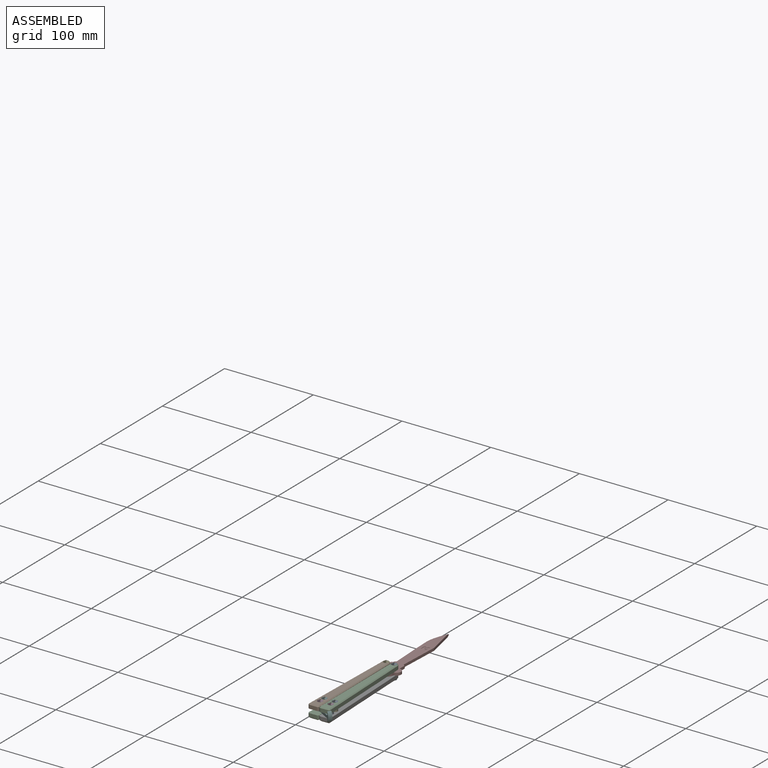
[diagram: assembled view]
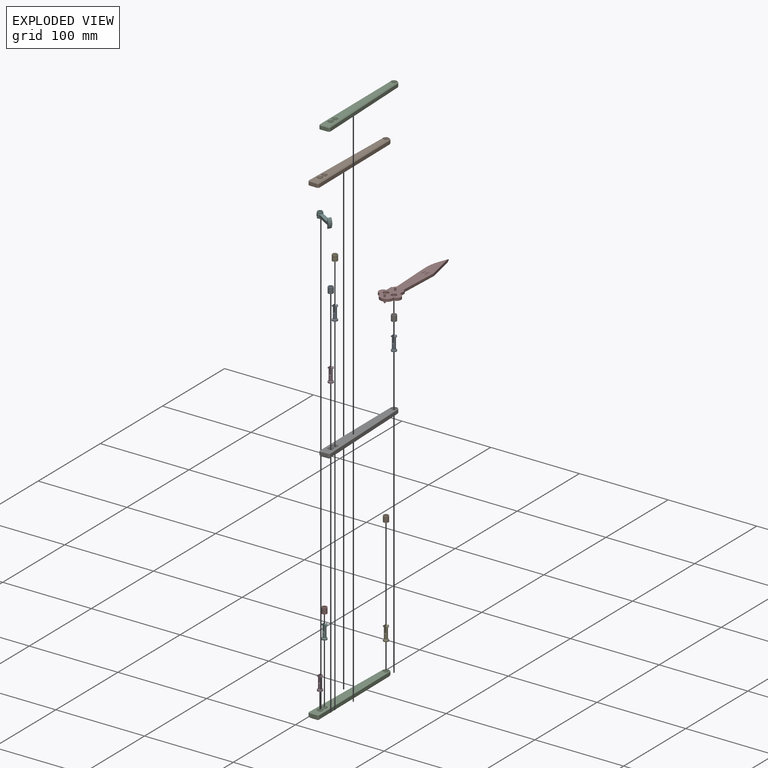
[diagram: exploded view]
GUIDED TOUR — MATED ASSEMBLY (Onshape document c22fe55abaea936f5209b5d4, AutoMate assembly c22fe55abaea936f5209b5d4_3cdbc63c3f95b4cfe2115290_4861135776a58d1719c82f19_default)

This assembly has 17 components, labeled P0..P16 below (a component is one placed occurrence of a part; the same part can appear more than once), held together by 16 mates. A mate is a constraint between two components; its type names the relative motion it leaves free:
  FASTENED — locks the two components together rigidly (no relative motion),
  REVOLUTE — leaves rotation about the listed axis free (a hinge).
Axis/direction vectors are unit vectors and 'through' points are millimeter coordinates, both in the assembly's world frame.

MATES
  1. REVOLUTE "Revolute 3": P5 <-> P2, axis (0.000, 0.000, -1.000) through (11.71, -177.00, 8.34) mm
  2. FASTENED "Fastened 5": P14 <-> P4, direction (0.000, 0.000, 1.000) through (23.59, -169.99, 8.34) mm
  3. FASTENED "Fastened 6": P2 <-> P7, direction (0.000, 0.000, 1.000) through (11.76, -170.00, 8.34) mm
  4. REVOLUTE "Revolute 2": P14 <-> P6, axis (0.000, 0.000, 1.000) through (21.54, -72.01, 8.34) mm
  5. FASTENED "Fastened 8": P12 <-> P2, direction (0.000, 0.000, 1.000) through (12.54, -72.01, 5.34) mm
  6. FASTENED "Fastened 10": P13 <-> P2, direction (0.000, 0.000, 1.000) through (11.76, -170.00, 5.34) mm
  7. FASTENED "Fastened 1": P1 <-> P15, direction (0.000, 0.000, -1.000) through (12.54, -72.01, 11.59) mm
  8. FASTENED "Fastened 11": P3 <-> P2, direction (0.000, 0.000, 1.000) through (11.71, -177.00, 5.34) mm
  9. FASTENED "Fastened 3": P7 <-> P9, direction (0.000, 0.000, 1.000) through (11.76, -170.00, 14.84) mm
  10. FASTENED "Fastened 7": P16 <-> P14, direction (0.000, 0.000, 1.000) through (21.54, -72.01, 5.34) mm
  11. FASTENED "Fastened 12": P11 <-> P14, direction (0.000, 0.000, 1.000) through (23.74, -176.98, 5.34) mm
  12. FASTENED "Fastened 13": P0 <-> P14, direction (0.000, 0.000, -1.000) through (23.74, -176.98, 8.34) mm
  13. FASTENED "Fastened 4": P4 <-> P10, direction (0.000, 0.000, 1.000) through (23.59, -169.99, 14.84) mm
  14. FASTENED "Fastened 9": P8 <-> P14, direction (0.000, 0.000, 1.000) through (23.59, -169.99, 5.34) mm
  15. FASTENED "Fastened 2": P6 <-> P15, direction (0.000, 0.000, -1.000) through (21.54, -72.01, 11.59) mm
  16. REVOLUTE "Revolute 1": P2 <-> P1, axis (0.000, 0.000, 1.000) through (12.54, -72.01, 8.34) mm

ASSEMBLY ORDER
  1. P2 — the base component [order heuristic]
  2. P1 [order heuristic]
  3. P3 [order heuristic]
  4. P5 [order heuristic]
  5. P7 [order heuristic]
  6. P12 [order heuristic]
  7. P13 [order heuristic]
  8. P9 [order heuristic]
  9. P15 [order heuristic]
  10. P6 [order heuristic]
  11. P14 [order heuristic]
  12. P0 [order heuristic]
  13. P4 [order heuristic]
  14. P8 [order heuristic]
  15. P11 [order heuristic]
  16. P16 [order heuristic]
  17. P10 [order heuristic]
Order-tag legend:
  [order heuristic] — this assembly is geometrically interlocked (no collision-free removal order exists), so components are listed in mate-graph order; insertion feasibility is not verified.

Of the 17 components, 11 carry the full construction recipe — the FeatureScript program that regenerates the part's solid from scratch; the rest are supplied as boundary geometry only.
Because this assembly has more than 12 components, the tour below covers the 12 most significant ones individually (every recipe-attached component first, then the largest by part volume), in assembly order; the remaining 5 are summarized together in a grouped section at the end.
Each toured component is shown spotlighted twice — in the assembled view, then in the exploded view, where a leader line traces a displaced component back to its assembled socket (saturated green if recipe-attached, orange if geometry-only; every other component desaturated gray) — followed by its recipe or geometry summary and the mates that hold it.
NOTE — this tour is split across 2 documents so each fits a 32k-token context. This is document 1: the component sections continue in the remaining 1 document, each repeating the header above.
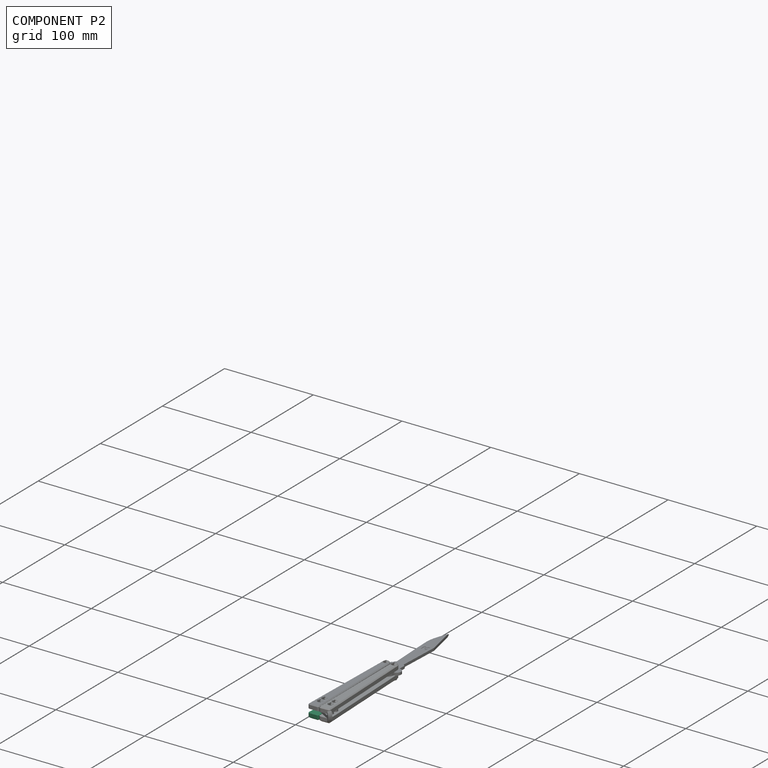
[diagram: component P2 — assembled]
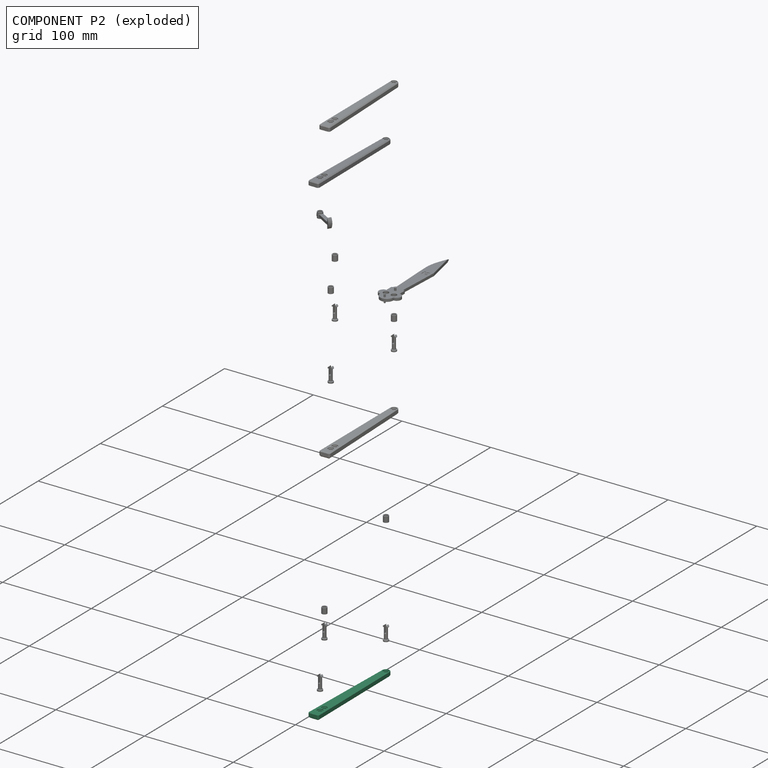
[diagram: component P2 — exploded]
COMPONENT P2 — recipe-attached (CADFS 00326435, mesh-verified: the recipe's output STEP matches this component's geometry to below the mesh-comparison resolution (tessellation chordal tolerance ~0.181 mm)).
Held by: REVOLUTE mate "Revolute 3" to P5; FASTENED mate "Fastened 6" to P7; FASTENED mate "Fastened 8" to P12; FASTENED mate "Fastened 10" to P13; FASTENED mate "Fastened 11" to P3; REVOLUTE mate "Revolute 1" to P1.
Construction recipe (FeatureScript — the CAD program that rebuilds this solid; sketch coordinates are in the units given by the * unit suffixes, e.g. mm):

FeatureScript 1511;
import(path : "onshape/std/geometry.fs", version : "1511.0");
import(path : "onshape/std/common.fs", version : "1511.0");
const mm = millimeter;
const VERTEX = EntityType.VERTEX;
const EDGE = EntityType.EDGE;
const FACE = EntityType.FACE;
const BODY = EntityType.BODY;
function v(x, y){return vector(x, y);}
function OD(order){return orderDisambiguation(order);}
function OSD(set){return originalSetDisambiguation(set);}
function TD(topology){return topologyDisambiguation(topology);}
function TDD(query){return trueDependencyDisambiguation(query);}
function sQuery(a, b, c) {return sketchEntityQuery(a, b, c);}

annotation { "Feature Type Name" : "Feature", "Feature Type Description" : "" }
export const myFeature = defineFeature(function(context is Context, id is Id, definition is map)
    precondition{}
    {
        {
            var Q0;
            Q0=qCreatedBy(makeId("Top.planeOp"),FACE);
            var sketch = newSketch(context, id + "F0", { "sketchPlane" : qUnion([Q0])});
            skLineSegment(sketch, "E0.top", {"start": v(-57.1, -56.14) * mm, "end": v(-49.1, -56.14) * mm});
            skPoint(sketch, "E1", {"position": v(-53.1, 59.86) * mm});
            skArc(sketch, "E2", {"start": v(-49.1, 59.86) * mm, "mid": v(-53.1, 63.86) * mm, "end": v(-57.1, 59.86) * mm});
            skPoint(sketch, "E3.orphan", {"position": v(-57.1, 63.86) * mm});
            skPoint(sketch, "E0.bottom.end.orphan", {"position": v(-49.1, 63.86) * mm});
            skLineSegment(sketch, "E4", {"start": v(-57.1, 59.86) * mm, "end": v(-57.2, 54.18) * mm});
            skLineSegment(sketch, "E5", {"start": v(-49.1, 59.86) * mm, "end": v(-49, 54.18) * mm});
            skCircle(sketch, "E6", {"center": v(-53.1, 59.86) * mm, "radius": 2 * mm});
            skLineSegment(sketch, "E7", {"start": v(-53.1, 63.86) * mm, "end": v(-53.1, -56.14) * mm, "construction": true});
            skPoint(sketch, "E8", {"position": v(-53.1, -31.14) * mm});
            skPoint(sketch, "E9", {"position": v(-53.1, -36.14) * mm});
            skPoint(sketch, "E10", {"position": v(-53.1, -38.14) * mm});
            skPoint(sketch, "E11", {"position": v(-53.1, -45.14) * mm});
            skCircle(sketch, "E12", {"center": v(-53.1, -38.14) * mm, "radius": 2 * mm});
            skCircle(sketch, "E13", {"center": v(-53.1, -45.14) * mm, "radius": 2 * mm});
            skArc(sketch, "E14", {"start": v(-57.1, -56.14) * mm, "mid": v(-58.38, -55.66) * mm, "end": v(-59.07, -54.47) * mm});
            skArc(sketch, "E15", {"start": v(-49.1, -56.14) * mm, "mid": v(-47.8, -55.66) * mm, "end": v(-47.12, -54.47) * mm});
            skPoint(sketch, "E16.trimOffspring.end.orphan", {"position": v(-59.1, -56.14) * mm});
            skPoint(sketch, "E17.orphan", {"position": v(-47.1, -56.14) * mm});
            skLineSegment(sketch, "E18.trimOffspring", {"start": v(-57.29, 48.76) * mm, "end": v(-59.07, -54.47) * mm});
            skLineSegment(sketch, "E19.trimOffspring", {"start": v(-48.9, 48.76) * mm, "end": v(-47.12, -54.47) * mm});
            skLineSegment(sketch, "E20", {"start": v(-57.2, 54.18) * mm, "end": v(-57.22, 52.52) * mm});
            skLineSegment(sketch, "E21", {"start": v(-49, 54.18) * mm, "end": v(-48.97, 52.52) * mm});
            skLineSegment(sketch, "E22", {"start": v(-57.27, 49.52) * mm, "end": v(-57.29, 48.76) * mm});
            skLineSegment(sketch, "E23.trimOffspring", {"start": v(-48.92, 49.52) * mm, "end": v(-48.9, 48.76) * mm});
            skLineSegment(sketch, "E24", {"start": v(-48.97, 52.52) * mm, "end": v(-48.92, 49.52) * mm});
            skLineSegment(sketch, "E25", {"start": v(-57.22, 52.52) * mm, "end": v(-57.27, 49.52) * mm});
            skSolve(sketch);
        }
        {
            var Q0;
            Q0=makeQuery(id+"F0.imprint","IMPRINT",FACE,{"disambiguationData":[TD([[makeQuery(id+"F0.imprint","IMPRINT",EDGE,{"derivedFrom":sQuery(id+"F0.wireOp",EDGE,"E0.top")}),1.0]])]});
            extrude(context, id + "F1", {"entities" : qUnion([Q0]), "depth" : 5 * mm});
        }
        {
            var Q0;
            Q0=makeQuery(id+"F1.opExtrude","CAP_EDGE",EDGE,{"disambiguationData":[OSD([sQuery(id+"F0.wireOp",EDGE,"E19.trimOffspring"),sQuery(id+"F0.wireOp",EDGE,"E23.trimOffspring")])],"isStart":false});
            var Q1;
            Q1=makeQuery(id+"F1.opExtrude","CAP_EDGE",EDGE,{"disambiguationData":[OSD([sQuery(id+"F0.wireOp",EDGE,"E18.trimOffspring"),sQuery(id+"F0.wireOp",EDGE,"E22")])],"isStart":false});
            var Q2;
            Q2=makeQuery(id+"F1.opExtrude","CAP_EDGE",EDGE,{"disambiguationData":[OSD([sQuery(id+"F0.wireOp",EDGE,"E14")])],"isStart":false});
            var Q3;
            Q3=makeQuery(id+"F1.opExtrude","CAP_EDGE",EDGE,{"disambiguationData":[OSD([sQuery(id+"F0.wireOp",EDGE,"E0.top")])],"isStart":false});
            var Q4;
            Q4=makeQuery(id+"F1.opExtrude","CAP_EDGE",EDGE,{"disambiguationData":[OSD([sQuery(id+"F0.wireOp",EDGE,"E15")])],"isStart":false});
            var Q5;
            Q5=makeQuery(id+"F1.opExtrude","CAP_EDGE",EDGE,{"disambiguationData":[OSD([sQuery(id+"F0.wireOp",EDGE,"E2")])],"isStart":false});
            var Q6;
            Q6=makeQuery(id+"F1.opExtrude","CAP_EDGE",EDGE,{"disambiguationData":[OSD([sQuery(id+"F0.wireOp",EDGE,"E4"),sQuery(id+"F0.wireOp",EDGE,"E20")])],"isStart":false});
            var Q7;
            Q7=makeQuery(id+"F1.opExtrude","CAP_EDGE",EDGE,{"disambiguationData":[OSD([sQuery(id+"F0.wireOp",EDGE,"E5"),sQuery(id+"F0.wireOp",EDGE,"E21")])],"isStart":false});
            var Q8;
            Q8=makeQuery(id+"F1.opExtrude","CAP_EDGE",EDGE,{"disambiguationData":[OSD([sQuery(id+"F0.wireOp",EDGE,"o0RNKsEq-p2mH-4jjP-SO0A-SJ8OjA0UEUDv")])],"isStart":false});
            var Q9;
            Q9=makeQuery(id+"F1.opExtrude","CAP_EDGE",EDGE,{"disambiguationData":[OSD([sQuery(id+"F0.wireOp",EDGE,"rJI7la13-ssud-MAWH-iN3m-8SUHMPCMIT3g")])],"isStart":false});
            chamfer(context, id + "F2", {"entities" : qUnion([Q0, Q1, Q2, Q3, Q4, Q5, Q6, Q7, Q8, Q9]), "width" : 1 * mm, "tangentPropagation" : true});
        }
        {
            var Q0;
            Q0=makeQuery(id+"F1.opExtrude","CAP_FACE",FACE,{"disambiguationData":[OSD([sQuery(id+"F0.wireOp",EDGE,"E0.top"),sQuery(id+"F0.wireOp",EDGE,"E2"),sQuery(id+"F0.wireOp",EDGE,"E4"),sQuery(id+"F0.wireOp",EDGE,"E5"),sQuery(id+"F0.wireOp",EDGE,"E6"),sQuery(id+"F0.wireOp",EDGE,"E12"),sQuery(id+"F0.wireOp",EDGE,"E13"),sQuery(id+"F0.wireOp",EDGE,"E14"),sQuery(id+"F0.wireOp",EDGE,"E15")])],"isStart":true});
            var sketch = newSketch(context, id + "F3", { "sketchPlane" : qUnion([Q0])});
            skPoint(sketch, "E26", {"position": v(-53.1, -59.86) * mm});
            skPoint(sketch, "E27", {"position": v(-53.1, 38.14) * mm});
            skCircle(sketch, "E28", {"center": v(-53.1, 38.14) * mm, "radius": 3 * mm});
            skCircle(sketch, "E29", {"center": v(-53.1, -59.86) * mm, "radius": 3 * mm});
            skCircle(sketch, "E30", {"center": v(-53.1, 45.14) * mm, "radius": 3 * mm});
            skSolve(sketch);
        }
        {
            var Q0;
            Q0=makeQuery(id+"F3.imprint","IMPRINT",FACE,{"disambiguationData":[TD([[makeQuery(id+"F3.imprint","IMPRINT",EDGE,{"derivedFrom":sQuery(id+"F3.wireOp",EDGE,"E28")}),1.0]])]});
            var Q1;
            Q1=sQuery(id+"F3.wireOp",EDGE,"E28");
            var Q2;
            Q2=sQuery(id+"F3.wireOp",EDGE,"NuHG6ebw-mJRD-JW6i-FIXQ-FZVYiqWoZk1F");
            extrude(context, id + "F4", {"entities" : qUnion([Q0]), "operationType" : NewBodyOperationType.REMOVE, "surfaceEntities" : qUnion([Q1, Q2]), "oppositeDirection" : true, "depth" : 1 * mm});
        }
        {
            var Q0;
            Q0=makeQuery(id+"F1.opExtrude","CAP_FACE",FACE,{"disambiguationData":[OSD([sQuery(id+"F0.wireOp",EDGE,"E0.top"),sQuery(id+"F0.wireOp",EDGE,"E2"),sQuery(id+"F0.wireOp",EDGE,"E4"),sQuery(id+"F0.wireOp",EDGE,"E5"),sQuery(id+"F0.wireOp",EDGE,"E6"),sQuery(id+"F0.wireOp",EDGE,"E12"),sQuery(id+"F0.wireOp",EDGE,"E13"),sQuery(id+"F0.wireOp",EDGE,"E14"),sQuery(id+"F0.wireOp",EDGE,"E15")])],"isStart":false});
            var sketch = newSketch(context, id + "F5", { "sketchPlane" : qUnion([Q0])});
            skPoint(sketch, "E31", {"position": v(-53.1, 59.86) * mm});
            skPoint(sketch, "E32", {"position": v(-53.1, -38.14) * mm});
            skPoint(sketch, "E33", {"position": v(-53.1, -45.14) * mm});
            skCircle(sketch, "E34", {"center": v(-53.1, -38.14) * mm, "radius": 3 * mm});
            skCircle(sketch, "E35", {"center": v(-53.1, -45.14) * mm, "radius": 3 * mm});
            skCircle(sketch, "E36", {"center": v(-53.1, 59.86) * mm, "radius": 3 * mm});
            skSolve(sketch);
        }
        {
            var Q0;
            Q0=makeQuery(id+"F5.imprint","IMPRINT",FACE,{"disambiguationData":[TD([[makeQuery(id+"F5.imprint","IMPRINT",EDGE,{"derivedFrom":sQuery(id+"F5.wireOp",EDGE,"E35")}),1.0]])]});
            var Q1;
            Q1=makeQuery(id+"F5.imprint","IMPRINT",FACE,{"disambiguationData":[TD([[makeQuery(id+"F5.imprint","IMPRINT",EDGE,{"derivedFrom":sQuery(id+"F5.wireOp",EDGE,"E34")}),1.0]])]});
            var Q2;
            {var subQ1=sQuery(id+"F0.wireOp",EDGE,"E6");Q2=makeQuery(id+"F5.imprint","IMPRINT",FACE,{"disambiguationData":[TD([[makeQuery(id+"F5.imprint","IMPRINT",EDGE,{"derivedFrom":makeQuery(id+"F1.opExtrude","CAP_EDGE",EDGE,{"disambiguationData":[OSD([subQ1])],"isStart":false})}),-1.0]])]});}
            var Q3;
            Q3=sQuery(id+"F5.wireOp",EDGE,"E34");
            var Q4;
            Q4=sQuery(id+"F5.wireOp",EDGE,"E35");
            var Q5;
            Q5=sQuery(id+"F5.wireOp",EDGE,"d6FoRQbe-lIdU-fJoR-s3iu-PYYhAoR2MkCE");
            extrude(context, id + "F6", {"entities" : qUnion([Q0, Q1, Q2]), "operationType" : NewBodyOperationType.REMOVE, "surfaceEntities" : qUnion([Q3, Q4, Q5]), "oppositeDirection" : true, "depth" : 1 * mm});
        }
        {
            var Q0;
            {var subQ1=sQuery(id+"F0.wireOp",EDGE,"E6");Q0=makeQuery(id+"F3.imprint","IMPRINT",FACE,{"disambiguationData":[TD([[makeQuery(id+"F3.imprint","IMPRINT",EDGE,{"derivedFrom":makeQuery(id+"F1.opExtrude","CAP_EDGE",EDGE,{"disambiguationData":[OSD([subQ1])],"isStart":true})}),1.0]])]});}
            var Q1;
            Q1=makeQuery(id+"F3.imprint","IMPRINT",FACE,{"disambiguationData":[TD([[makeQuery(id+"F3.imprint","IMPRINT",EDGE,{"derivedFrom":sQuery(id+"F3.wireOp",EDGE,"E30")}),1.0]])]});
            extrude(context, id + "F7", {"entities" : qUnion([Q0, Q1]), "operationType" : NewBodyOperationType.REMOVE, "oppositeDirection" : true, "depth" : 1 * mm});
        }
    });
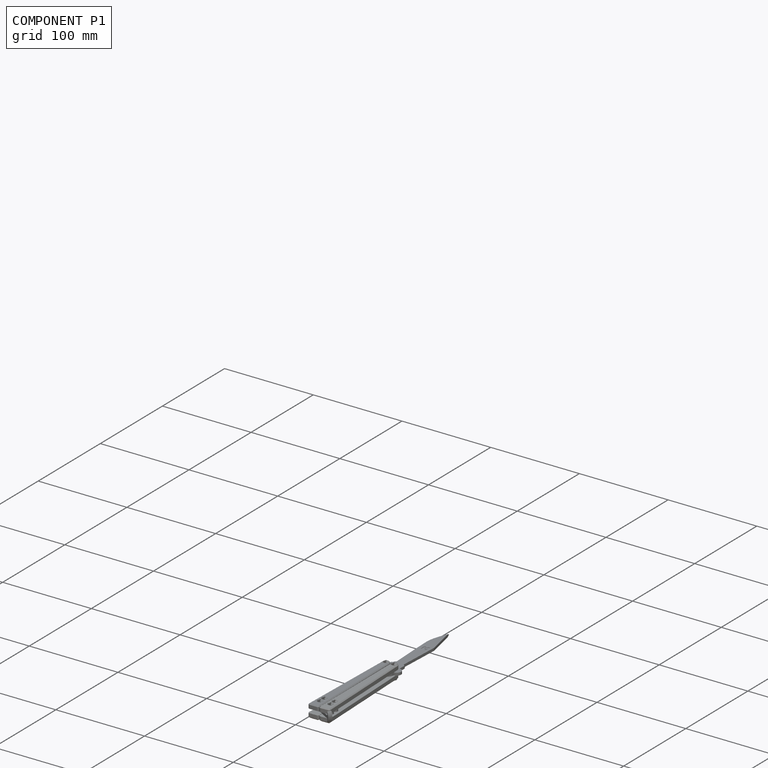
[diagram: component P1 — assembled]
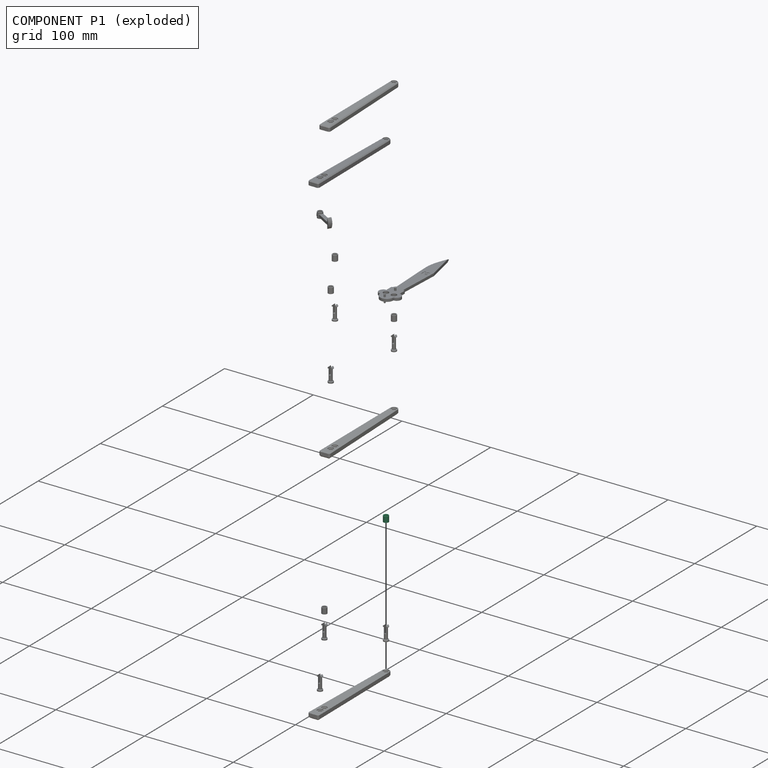
[diagram: component P1 — exploded]
COMPONENT P1 — same part as P0 (CADFS 00326436); its construction recipe is shown at P0.
Held by: FASTENED mate "Fastened 1" to P15; REVOLUTE mate "Revolute 1" to P2.
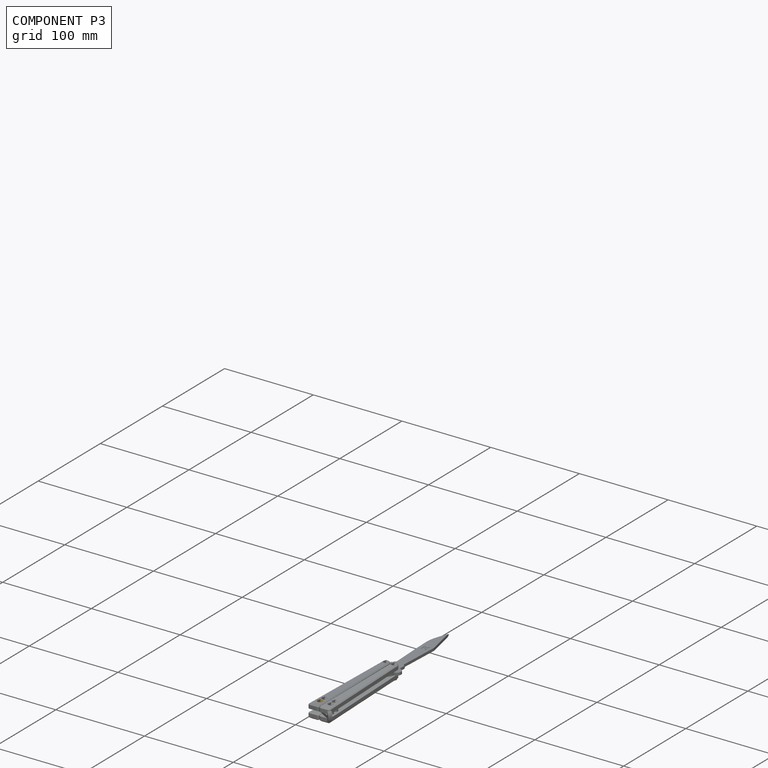
[diagram: component P3 — assembled]
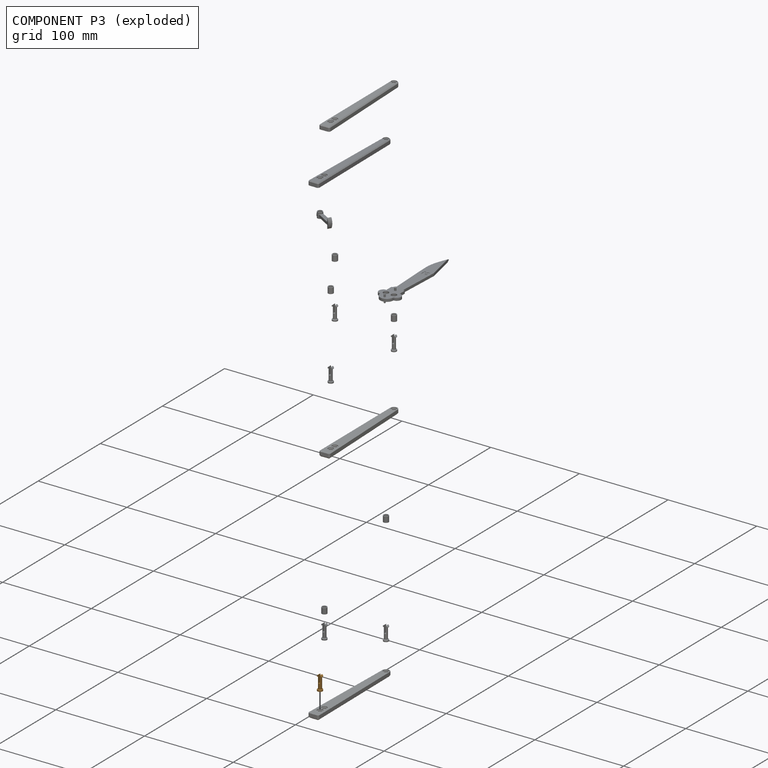
[diagram: component P3 — exploded]
COMPONENT P3 — geometry summary (no construction recipe available for this part):
  bounding box: 16.4 x 5.8 x 5.8 mm
  B-rep topology: 1 solid, 18 faces, 88 edges
  volume: 161 mm^3 (29% of its bounding box)
  symmetry: 2-fold rotationally symmetric about the z axis; mirror-symmetric across its x mid-plane, y mid-plane
Held by: FASTENED mate "Fastened 11" to P2.
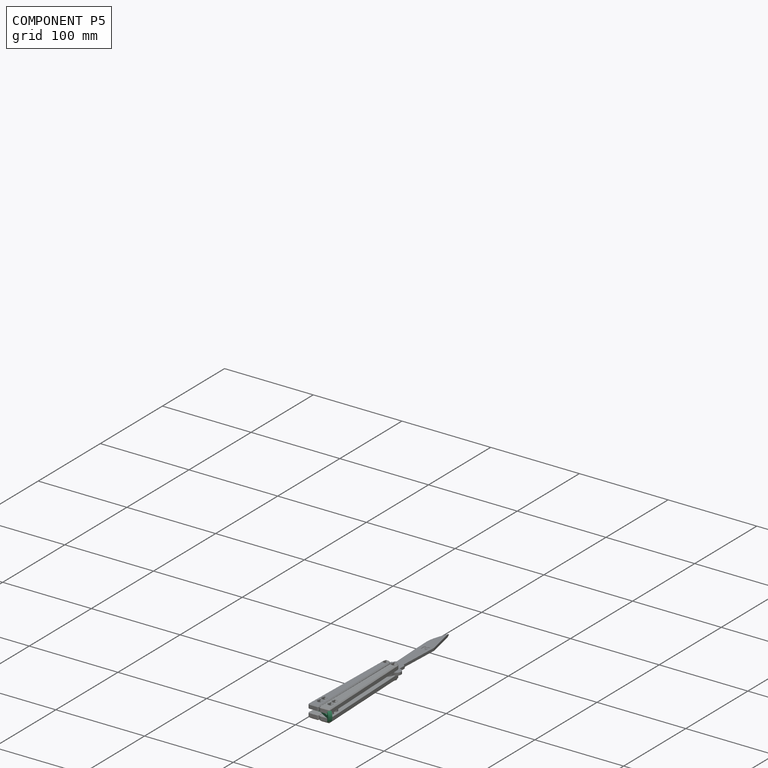
[diagram: component P5 — assembled]
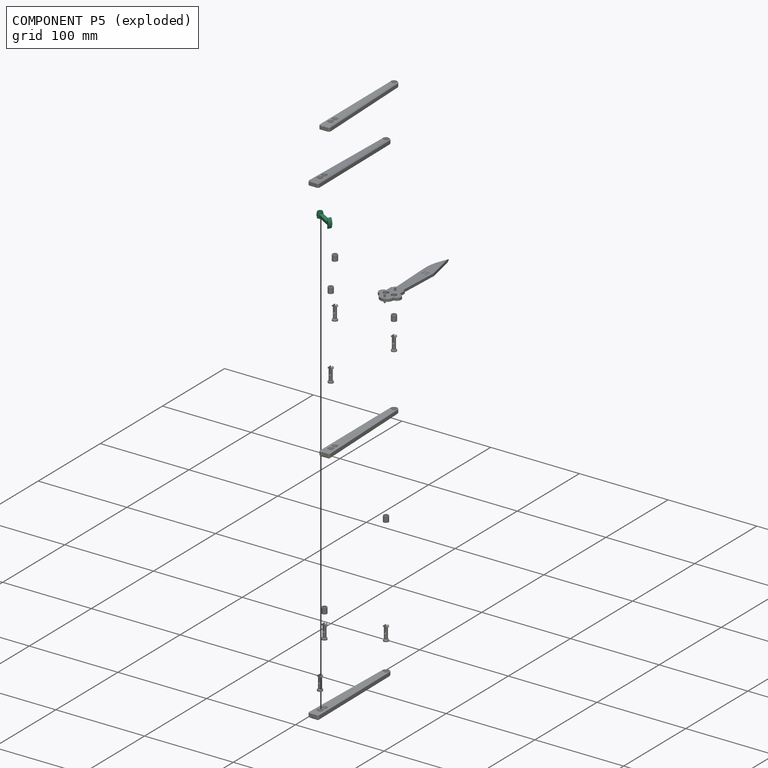
[diagram: component P5 — exploded]
COMPONENT P5 — recipe-attached (CADFS 00326437, mesh-verified: the recipe's output STEP matches this component's geometry to below the mesh-comparison resolution (tessellation chordal tolerance ~0.0436 mm)).
Held by: REVOLUTE mate "Revolute 3" to P2.
Construction recipe (FeatureScript — the CAD program that rebuilds this solid; sketch coordinates are in the units given by the * unit suffixes, e.g. mm):

FeatureScript 1511;
import(path : "onshape/std/geometry.fs", version : "1511.0");
import(path : "onshape/std/common.fs", version : "1511.0");
const mm = millimeter;
const VERTEX = EntityType.VERTEX;
const EDGE = EntityType.EDGE;
const FACE = EntityType.FACE;
const BODY = EntityType.BODY;
function v(x, y){return vector(x, y);}
function OD(order){return orderDisambiguation(order);}
function OSD(set){return originalSetDisambiguation(set);}
function TD(topology){return topologyDisambiguation(topology);}
function TDD(query){return trueDependencyDisambiguation(query);}
function sQuery(a, b, c) {return sketchEntityQuery(a, b, c);}

annotation { "Feature Type Name" : "Feature", "Feature Type Description" : "" }
export const myFeature = defineFeature(function(context is Context, id is Id, definition is map)
    precondition{}
    {
        {
            var Q0;
            Q0=qCreatedBy(makeId("Top.planeOp"),FACE);
            var sketch = newSketch(context, id + "F0", { "sketchPlane" : qUnion([Q0])});
            skLineSegment(sketch, "E0.right", {"start": v(10.92, 10.5) * mm, "end": v(10.92, 8.1) * mm});
            skPoint(sketch, "E1", {"position": v(-5.16, 1.5) * mm});
            skPoint(sketch, "E2", {"position": v(-9.66, 6) * mm});
            skCircle(sketch, "E3", {"center": v(-9.66, 6) * mm, "radius": 2.1 * mm});
            skArc(sketch, "E4", {"start": v(-7.18, 8.1) * mm, "mid": v(-12.9, 6) * mm, "end": v(-7.18, 3.9) * mm});
            skLineSegment(sketch, "E5", {"start": v(-7.18, 8.1) * mm, "end": v(10.92, 8.1) * mm});
            skLineSegment(sketch, "E6", {"start": v(-7.18, 3.9) * mm, "end": v(10.92, 3.9) * mm});
            skPoint(sketch, "E0.left.start.orphan", {"position": v(-14.16, 10.5) * mm});
            skPoint(sketch, "E7.orphan", {"position": v(-14.16, 1.5) * mm});
            skLineSegment(sketch, "E8.bottom", {"start": v(10.92, 10.5) * mm, "end": v(18.8, 10.5) * mm});
            skLineSegment(sketch, "E8.top", {"start": v(10.92, 1.5) * mm, "end": v(18.8, 1.5) * mm});
            skLineSegment(sketch, "E8.right", {"start": v(18.8, 10.5) * mm, "end": v(18.8, 1.5) * mm});
            skLineSegment(sketch, "E9.trimOffspring", {"start": v(10.92, 3.9) * mm, "end": v(10.92, 1.5) * mm});
            skLineSegment(sketch, "E10", {"start": v(10.92, 8.1) * mm, "end": v(10.92, 3.9) * mm});
            skSolve(sketch);
        }
        {
            var Q0;
            Q0=makeQuery(id+"F0.imprint","IMPRINT",FACE,{"disambiguationData":[TD([[makeQuery(id+"F0.imprint","IMPRINT",EDGE,{"derivedFrom":sQuery(id+"F0.wireOp",EDGE,"E0.right")}),1.0]])]});
            var Q1;
            Q1=makeQuery(id+"F0.imprint","IMPRINT",FACE,{"disambiguationData":[TD([[makeQuery(id+"F0.imprint","IMPRINT",EDGE,{"derivedFrom":sQuery(id+"F0.wireOp",EDGE,"E3")}),-1.0]])]});
            extrude(context, id + "F1", {"entities" : qUnion([Q0, Q1]), "depth" : 3 * mm});
        }
        {
            var Q0;
            Q0=makeQuery(id+"F1.opExtrude","CAP_FACE",FACE,{"disambiguationData":[OSD([sQuery(id+"F0.wireOp",EDGE,"E0.right"),sQuery(id+"F0.wireOp",EDGE,"E3"),sQuery(id+"F0.wireOp",EDGE,"E4"),sQuery(id+"F0.wireOp",EDGE,"E5"),sQuery(id+"F0.wireOp",EDGE,"E6"),sQuery(id+"F0.wireOp",EDGE,"E8.bottom"),sQuery(id+"F0.wireOp",EDGE,"E8.top"),sQuery(id+"F0.wireOp",EDGE,"E8.right"),sQuery(id+"F0.wireOp",EDGE,"E9.trimOffspring")])],"isStart":false});
            var sketch = newSketch(context, id + "F2", { "sketchPlane" : qUnion([Q0])});
            skPoint(sketch, "E11", {"position": v(9.92, 10.5) * mm});
            skLineSegment(sketch, "E12", {"start": v(10.92, 8.1) * mm, "end": v(10.92, 3.9) * mm});
            skLineSegment(sketch, "E13", {"start": v(10.92, 3.9) * mm, "end": v(18.8, 3.9) * mm});
            skLineSegment(sketch, "E14", {"start": v(10.92, 8.1) * mm, "end": v(18.8, 8.1) * mm});
            skSolve(sketch);
        }
        {
            var Q0;
            {var subQ0=sQuery(id+"F2.wireOp",EDGE,"E14");Q0=makeQuery(id+"F2.imprint","IMPRINT",FACE,{"disambiguationData":[TD([[makeQuery(id+"F2.imprint","IMPRINT",EDGE,{"derivedFrom":subQ0}),1.0]])]});}
            var Q1;
            {var subQ0=sQuery(id+"F2.wireOp",EDGE,"E13");Q1=makeQuery(id+"F2.imprint","IMPRINT",FACE,{"disambiguationData":[TD([[makeQuery(id+"F2.imprint","IMPRINT",EDGE,{"derivedFrom":subQ0}),-1.0]])]});}
            extrude(context, id + "F3", {"entities" : qUnion([Q0, Q1]), "operationType" : NewBodyOperationType.REMOVE, "oppositeDirection" : true, "depth" : 25 * mm});
        }
        {
            var Q0;
            Q0=makeQuery(id+"F2.imprint","IMPRINT",FACE,{"disambiguationData":[TD([[makeQuery(id+"F2.imprint","IMPRINT",EDGE,{"derivedFrom":sQuery(id+"F2.wireOp",EDGE,"E12")}),1.0]])]});
            extrude(context, id + "F4", {"entities" : qUnion([Q0]), "operationType" : NewBodyOperationType.ADD, "depth" : 5 * mm});
        }
        {
            var Q0;
            Q0=makeQuery(id+"F2.imprint","IMPRINT",FACE,{"disambiguationData":[TD([[makeQuery(id+"F2.imprint","IMPRINT",EDGE,{"derivedFrom":sQuery(id+"F2.wireOp",EDGE,"E12")}),1.0]])]});
            extrude(context, id + "F5", {"entities" : qUnion([Q0]), "operationType" : NewBodyOperationType.ADD, "oppositeDirection" : true, "depth" : 8 * mm});
        }
        {
            var Q0;
            {var subQ0=sQuery(id+"F2.wireOp",EDGE,"E14");Q0=makeQuery(id+"F5.boolean.opBoolean","MERGE",FACE,{"derivedFrom":[makeQuery(id+"F4.boolean.opBoolean","MERGE",FACE,{"derivedFrom":[makeQuery(id+"F3.boolean.opBoolean","MERGE",FACE,{"derivedFrom":[makeQuery(id+"F1.opExtrude","SWEPT_FACE",FACE,{"disambiguationData":[OSD([sQuery(id+"F0.wireOp",EDGE,"E5")])]}),makeQuery(id+"F3.opExtrude","SWEPT_FACE",FACE,{"disambiguationData":[OSD([subQ0])]})]}),makeQuery(id+"F4.opExtrude","SWEPT_FACE",FACE,{"disambiguationData":[OSD([subQ0])]})]}),makeQuery(id+"F5.opExtrude","SWEPT_FACE",FACE,{"disambiguationData":[OSD([subQ0])]})]});}
            var sketch = newSketch(context, id + "F6", { "sketchPlane" : qUnion([Q0])});
            skPoint(sketch, "E15", {"position": v(-9.92, 8) * mm});
            skLineSegment(sketch, "E16", {"start": v(-9.92, 8) * mm, "end": v(-9.92, -5) * mm, "construction": true});
            skArc(sketch, "E17", {"start": v(-9.92, 8) * mm, "mid": v(-13.12, 1.5) * mm, "end": v(-9.92, -5) * mm});
            skSolve(sketch);
        }
        {
            var Q0;
            {var subQ0=sQuery(id+"F6.wireOp",EDGE,"E17");Q0=makeQuery(id+"F6.imprint","IMPRINT",FACE,{"disambiguationData":[TD([[makeQuery(id+"F6.imprint","IMPRINT",EDGE,{"derivedFrom":subQ0}),-1.0]])]});}
            extrude(context, id + "F7", {"entities" : qUnion([Q0]), "operationType" : NewBodyOperationType.REMOVE, "oppositeDirection" : true, "depth" : 25 * mm});
        }
        {
            var Q0;
            Q0=makeQuery(id+"F1.opExtrude","CAP_FACE",FACE,{"disambiguationData":[OSD([sQuery(id+"F0.wireOp",EDGE,"E0.right"),sQuery(id+"F0.wireOp",EDGE,"E3"),sQuery(id+"F0.wireOp",EDGE,"E4"),sQuery(id+"F0.wireOp",EDGE,"E5"),sQuery(id+"F0.wireOp",EDGE,"E6"),sQuery(id+"F0.wireOp",EDGE,"E8.bottom"),sQuery(id+"F0.wireOp",EDGE,"E8.top"),sQuery(id+"F0.wireOp",EDGE,"E8.right"),sQuery(id+"F0.wireOp",EDGE,"E9.trimOffspring")])],"isStart":true});
            var sketch = newSketch(context, id + "F8", { "sketchPlane" : qUnion([Q0])});
            skPoint(sketch, "E18", {"position": v(-9.66, -6) * mm});
            skCircle(sketch, "E19", {"center": v(-9.66, -6) * mm, "radius": 2.9 * mm});
            skSolve(sketch);
        }
        {
            var Q0;
            Q0=makeQuery(id+"F8.imprint","IMPRINT",FACE,{"disambiguationData":[TD([[makeQuery(id+"F8.imprint","IMPRINT",EDGE,{"derivedFrom":sQuery(id+"F8.wireOp",EDGE,"E19")}),1.0]])]});
            extrude(context, id + "F9", {"entities" : qUnion([Q0]), "operationType" : NewBodyOperationType.ADD, "depth" : 1.75 * mm});
        }
        {
            var Q0;
            Q0=makeQuery(id+"F1.opExtrude","CAP_FACE",FACE,{"disambiguationData":[OSD([sQuery(id+"F0.wireOp",EDGE,"E0.right"),sQuery(id+"F0.wireOp",EDGE,"E3"),sQuery(id+"F0.wireOp",EDGE,"E4"),sQuery(id+"F0.wireOp",EDGE,"E5"),sQuery(id+"F0.wireOp",EDGE,"E6"),sQuery(id+"F0.wireOp",EDGE,"E8.bottom"),sQuery(id+"F0.wireOp",EDGE,"E8.top"),sQuery(id+"F0.wireOp",EDGE,"E8.right"),sQuery(id+"F0.wireOp",EDGE,"E9.trimOffspring")])],"isStart":false});
            var sketch = newSketch(context, id + "F10", { "sketchPlane" : qUnion([Q0])});
            skPoint(sketch, "E20", {"position": v(-9.66, 6) * mm});
            skCircle(sketch, "E21", {"center": v(-9.66, 6) * mm, "radius": 2.9 * mm});
            skSolve(sketch);
        }
        {
            var Q0;
            Q0=makeQuery(id+"F10.imprint","IMPRINT",FACE,{"disambiguationData":[TD([[makeQuery(id+"F10.imprint","IMPRINT",EDGE,{"derivedFrom":sQuery(id+"F10.wireOp",EDGE,"E21")}),1.0]])]});
            extrude(context, id + "F11", {"entities" : qUnion([Q0]), "operationType" : NewBodyOperationType.ADD, "depth" : 1.75 * mm});
        }
    });
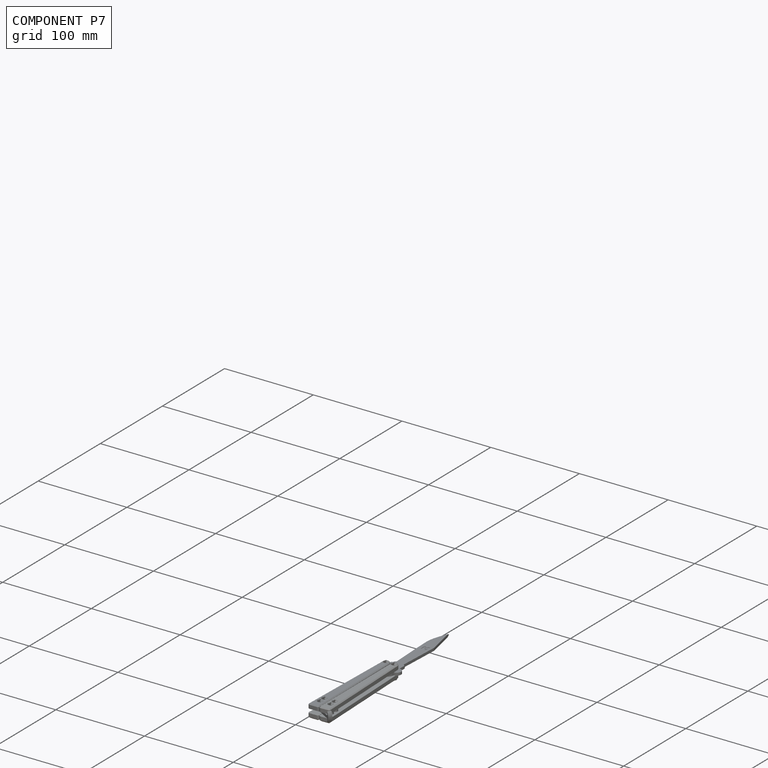
[diagram: component P7 — assembled]
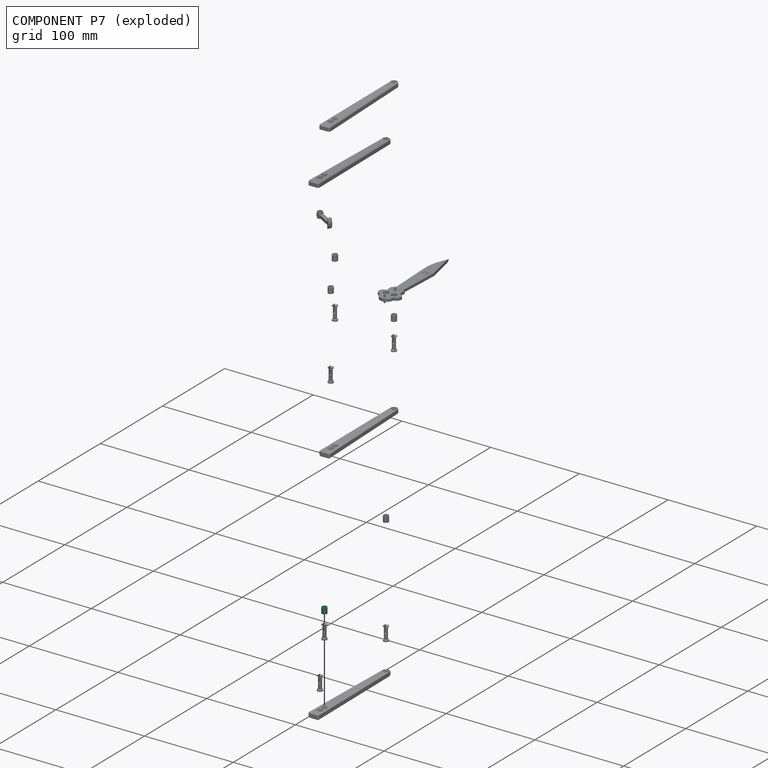
[diagram: component P7 — exploded]
COMPONENT P7 — same part as P0 (CADFS 00326436); its construction recipe is shown at P0.
Held by: FASTENED mate "Fastened 6" to P2; FASTENED mate "Fastened 3" to P9.
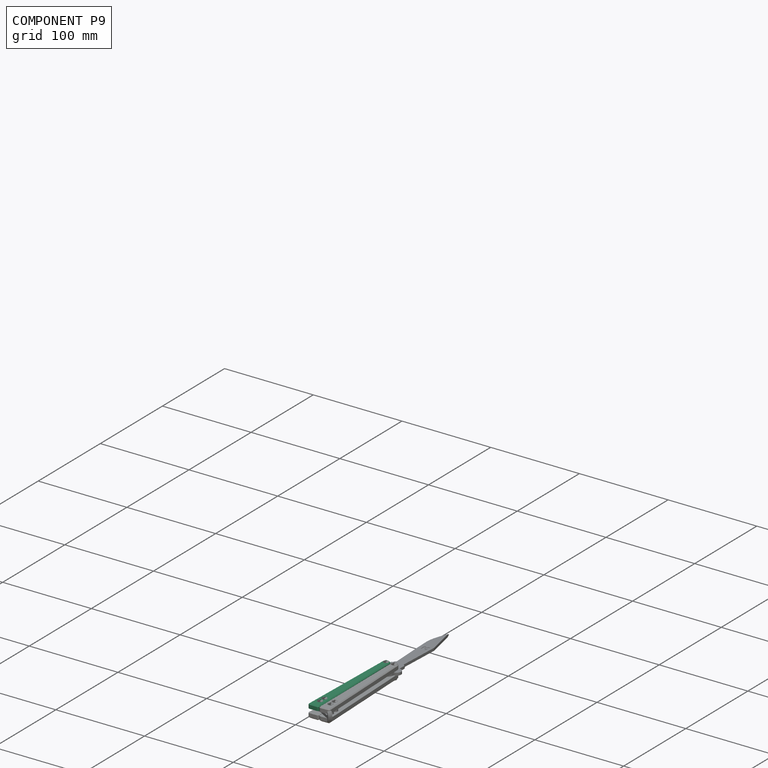
[diagram: component P9 — assembled]
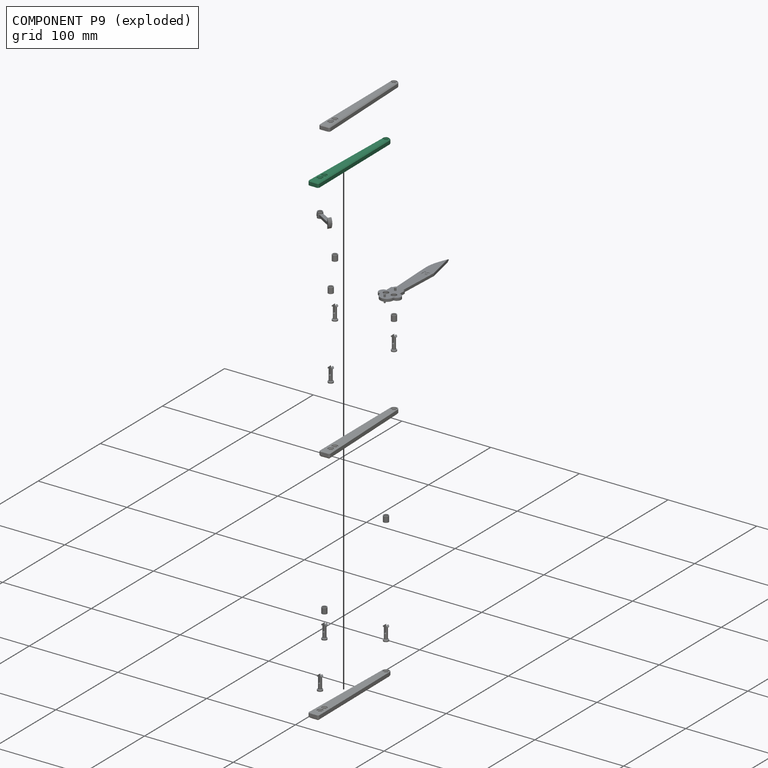
[diagram: component P9 — exploded]
COMPONENT P9 — same part as P2 (CADFS 00326435); its construction recipe is shown at P2.
Held by: FASTENED mate "Fastened 3" to P7.
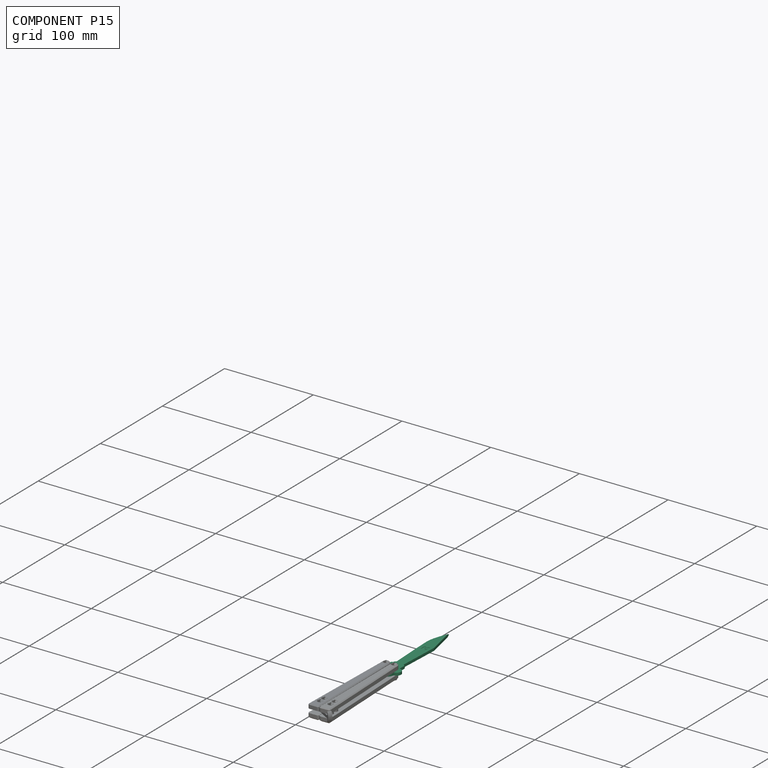
[diagram: component P15 — assembled]
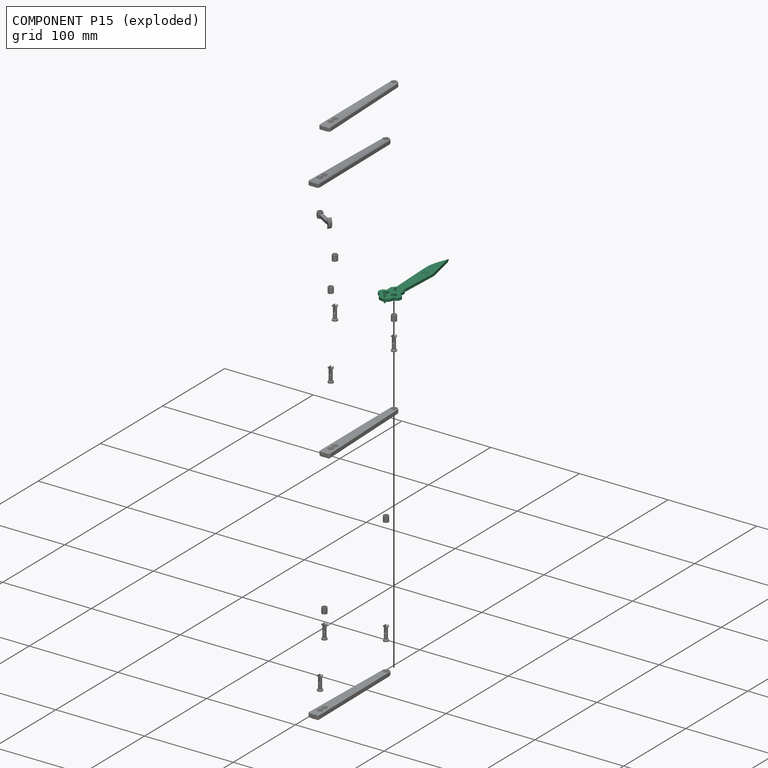
[diagram: component P15 — exploded]
COMPONENT P15 — recipe-attached (CADFS 00326434, mesh-verified: the recipe's output STEP matches this component's geometry to below the mesh-comparison resolution (tessellation chordal tolerance ~0.166 mm)).
Held by: FASTENED mate "Fastened 1" to P1; FASTENED mate "Fastened 2" to P6.
Construction recipe (FeatureScript — the CAD program that rebuilds this solid; sketch coordinates are in the units given by the * unit suffixes, e.g. mm):

FeatureScript 1511;
import(path : "onshape/std/geometry.fs", version : "1511.0");
import(path : "onshape/std/common.fs", version : "1511.0");
const mm = millimeter;
const VERTEX = EntityType.VERTEX;
const EDGE = EntityType.EDGE;
const FACE = EntityType.FACE;
const BODY = EntityType.BODY;
function v(x, y){return vector(x, y);}
function OD(order){return orderDisambiguation(order);}
function OSD(set){return originalSetDisambiguation(set);}
function TD(topology){return topologyDisambiguation(topology);}
function TDD(query){return trueDependencyDisambiguation(query);}
function sQuery(a, b, c) {return sketchEntityQuery(a, b, c);}

annotation { "Feature Type Name" : "Feature", "Feature Type Description" : "" }
export const myFeature = defineFeature(function(context is Context, id is Id, definition is map)
    precondition{}
    {
        {
            var Q0;
            Q0=qCreatedBy(makeId("Top.planeOp"),FACE);
            var sketch = newSketch(context, id + "F0", { "sketchPlane" : qUnion([Q0])});
            skLineSegment(sketch, "E0.right", {"start": v(-33.18, -19.61) * mm, "end": v(-33.18, -27.61) * mm});
            skPoint(sketch, "E1", {"position": v(-33.18, 27.39) * mm});
            skPoint(sketch, "E2", {"position": v(-40.68, 62.39) * mm});
            skPoint(sketch, "E3", {"position": v(-48.18, -17.61) * mm});
            skLineSegment(sketch, "E4", {"start": v(-40.68, 62.39) * mm, "end": v(-33.18, 27.39) * mm});
            skArc(sketch, "E5", {"start": v(-35.18, -17.61) * mm, "mid": v(-34.6, -19.03) * mm, "end": v(-33.18, -19.61) * mm});
            skArc(sketch, "E6", {"start": v(-46.18, -17.61) * mm, "mid": v(-46.77, -19.03) * mm, "end": v(-48.18, -19.61) * mm});
            skLineSegment(sketch, "E7", {"start": v(-33.18, 27.39) * mm, "end": v(-35.18, -17.61) * mm});
            skLineSegment(sketch, "E8.trimOffspring", {"start": v(-48.18, -19.61) * mm, "end": v(-48.18, -27.61) * mm});
            skPoint(sketch, "E9", {"position": v(-48.18, 37.39) * mm});
            skFitSpline(sketch, "E10", {"points": [v(-40.68, 62.39) * mm, v(-48.18, 37.39) * mm, v(-46.18, -17.61) * mm], "startDerivative": vector(-50.77, -118.48) * mm, "endDerivative": vector(11.83, -259.4) * mm});
            skPoint(sketch, "E11", {"position": v(-48.18, -27.61) * mm});
            skPoint(sketch, "E12", {"position": v(-48.18, -32.61) * mm});
            skArc(sketch, "E13", {"start": v(-48.18, -27.61) * mm, "mid": v(-53.18, -32.61) * mm, "end": v(-48.18, -37.61) * mm});
            skArc(sketch, "E14", {"start": v(-33.18, -27.61) * mm, "mid": v(-28.18, -32.61) * mm, "end": v(-33.18, -37.61) * mm});
            skPoint(sketch, "E15", {"position": v(-45.18, -32.61) * mm});
            skPoint(sketch, "E16", {"position": v(-36.18, -32.61) * mm});
            skCircle(sketch, "E17", {"center": v(-45.18, -32.61) * mm, "radius": 3 * mm});
            skCircle(sketch, "E18", {"center": v(-36.18, -32.61) * mm, "radius": 3 * mm});
            skPoint(sketch, "E19", {"position": v(-40.68, -37.61) * mm});
            skArc(sketch, "E20", {"start": v(-48.18, -37.61) * mm, "mid": v(-40.68, -45.11) * mm, "end": v(-33.18, -37.61) * mm});
            skPoint(sketch, "E21", {"position": v(-40.68, -45.11) * mm});
            skSolve(sketch);
        }
        {
            var Q0;
            Q0=makeQuery(id+"F0.imprint","IMPRINT",FACE,{"disambiguationData":[TD([[makeQuery(id+"F0.imprint","IMPRINT",EDGE,{"derivedFrom":sQuery(id+"F0.wireOp",EDGE,"E0.right")}),-1.0]])]});
            extrude(context, id + "F1", {"entities" : qUnion([Q0]), "depth" : 3 * mm});
        }
        {
            var Q0;
            Q0=makeQuery(id+"F1.opExtrude","CAP_FACE",FACE,{"disambiguationData":[OSD([sQuery(id+"F0.wireOp",EDGE,"E0.right"),sQuery(id+"F0.wireOp",EDGE,"E4"),sQuery(id+"F0.wireOp",EDGE,"E5"),sQuery(id+"F0.wireOp",EDGE,"E6"),sQuery(id+"F0.wireOp",EDGE,"E7"),sQuery(id+"F0.wireOp",EDGE,"E8.trimOffspring"),sQuery(id+"F0.wireOp",EDGE,"E10"),sQuery(id+"F0.wireOp",EDGE,"E13"),sQuery(id+"F0.wireOp",EDGE,"E14"),sQuery(id+"F0.wireOp",EDGE,"E17"),sQuery(id+"F0.wireOp",EDGE,"E18"),sQuery(id+"F0.wireOp",EDGE,"E20")])],"isStart":false});
            var sketch = newSketch(context, id + "F2", { "sketchPlane" : qUnion([Q0])});
            skPoint(sketch, "E22", {"position": v(-45.18, -32.61) * mm});
            skPoint(sketch, "E23", {"position": v(-36.18, -32.61) * mm});
            skPoint(sketch, "E24", {"position": v(-40.68, -45.11) * mm});
            skLineSegment(sketch, "E25", {"start": v(-40.68, -45.11) * mm, "end": v(-40.68, -24.11) * mm, "construction": true});
            skPoint(sketch, "E26", {"position": v(-40.68, -24.11) * mm});
            skPoint(sketch, "E27", {"position": v(-40.68, -41.11) * mm});
            skCircle(sketch, "E28", {"center": v(-40.68, -41.11) * mm, "radius": 1 * mm});
            skCircle(sketch, "E29", {"center": v(-40.68, -24.11) * mm, "radius": 1 * mm});
            skPoint(sketch, "E30", {"position": v(-39.68, -24.11) * mm});
            skPoint(sketch, "E31", {"position": v(-39.18, -32.61) * mm});
            skPoint(sketch, "E32", {"position": v(-42.18, -32.61) * mm});
            skPoint(sketch, "E33", {"position": v(-53.18, -32.61) * mm});
            skPoint(sketch, "E34", {"position": v(-28.18, -32.61) * mm});
            skCircle(sketch, "E35", {"center": v(-40.68, -41.11) * mm, "radius": 1.5 * mm});
            skCircle(sketch, "E36", {"center": v(-40.68, -24.11) * mm, "radius": 1.5 * mm});
            skSolve(sketch);
        }
        {
            var Q0;
            Q0=makeQuery(id+"F2.imprint","IMPRINT",FACE,{"disambiguationData":[TD([[makeQuery(id+"F2.imprint","IMPRINT",EDGE,{"derivedFrom":sQuery(id+"F2.wireOp",EDGE,"E29")}),1.0]])]});
            var Q1;
            Q1=makeQuery(id+"F2.imprint","IMPRINT",FACE,{"disambiguationData":[TD([[makeQuery(id+"F2.imprint","IMPRINT",EDGE,{"derivedFrom":sQuery(id+"F2.wireOp",EDGE,"E28")}),1.0]])]});
            extrude(context, id + "F3", {"entities" : qUnion([Q0, Q1]), "operationType" : NewBodyOperationType.ADD, "depth" : 3 * mm});
        }
        {
            var Q0;
            Q0=makeQuery(id+"F3.opExtrude","CAP_FACE",FACE,{"disambiguationData":[OSD([sQuery(id+"F2.wireOp",EDGE,"E29")])],"isStart":false});
            var Q1;
            Q1=makeQuery(id+"F3.opExtrude","CAP_FACE",FACE,{"disambiguationData":[OSD([sQuery(id+"F2.wireOp",EDGE,"E28")])],"isStart":false});
            extrude(context, id + "F4", {"entities" : qUnion([Q0, Q1]), "operationType" : NewBodyOperationType.ADD, "oppositeDirection" : true, "depth" : 9 * mm});
        }
        {
            var Q0;
            Q0=makeQuery(id+"F1.opExtrude","SWEPT_FACE",FACE,{"disambiguationData":[OSD([sQuery(id+"F0.wireOp",EDGE,"E4")])]});
            var sketch = newSketch(context, id + "F5", { "sketchPlane" : qUnion([Q0])});
            skPoint(sketch, "E37", {"position": v(69.53, 1.5) * mm});
            skPoint(sketch, "E38", {"position": v(66.53, 3) * mm});
            skPoint(sketch, "E39", {"position": v(66.53, 0) * mm});
            skLineSegment(sketch, "E40", {"start": v(66.53, 3) * mm, "end": v(69.53, 1.5) * mm});
            skLineSegment(sketch, "E41", {"start": v(66.53, 0) * mm, "end": v(69.53, 1.5) * mm});
            skSolve(sketch);
        }
        {
            var Q0;
            {var subQ0=sQuery(id+"F5.wireOp",EDGE,"E41");Q0=makeQuery(id+"F5.imprint","IMPRINT",FACE,{"disambiguationData":[TD([[makeQuery(id+"F5.imprint","IMPRINT",EDGE,{"derivedFrom":subQ0}),-1.0]])]});}
            var Q1;
            {var subQ0=sQuery(id+"F5.wireOp",EDGE,"E40");Q1=makeQuery(id+"F5.imprint","IMPRINT",FACE,{"disambiguationData":[TD([[makeQuery(id+"F5.imprint","IMPRINT",EDGE,{"derivedFrom":subQ0}),1.0]])]});}
            var Q2;
            Q2=makeQuery(id+"F1.opExtrude","CAP_EDGE",EDGE,{"disambiguationData":[OSD([sQuery(id+"F0.wireOp",EDGE,"E10")])],"isStart":false});
            sweep(context, id + "F6", {"operationType" : NewBodyOperationType.REMOVE, "profiles" : qUnion([Q0, Q1]), "path" : qUnion([Q2])});
        }
        {
            var Q0;
            Q0=makeQuery(id+"F6.boolean.opBoolean","COPY",FACE,{"derivedFrom":makeQuery(id+"F6.opSweep","CAP_FACE",FACE,{"disambiguationData":[OSD([sQuery(id+"F0.wireOp",EDGE,"E4"),sQuery(id+"F0.wireOp",EDGE,"E6"),sQuery(id+"F0.wireOp",EDGE,"E10"),sQuery(id+"F5.wireOp",EDGE,"E40")])],"isStart":false})});
            var Q1;
            Q1=makeQuery(id+"F6.boolean.opBoolean","COPY",FACE,{"derivedFrom":makeQuery(id+"F6.opSweep","CAP_FACE",FACE,{"disambiguationData":[OSD([sQuery(id+"F0.wireOp",EDGE,"E4"),sQuery(id+"F0.wireOp",EDGE,"E6"),sQuery(id+"F0.wireOp",EDGE,"E10"),sQuery(id+"F5.wireOp",EDGE,"E41")])],"isStart":false})});
            extrude(context, id + "F7", {"entities" : qUnion([Q0, Q1]), "operationType" : NewBodyOperationType.ADD, "depth" : 3 * mm});
        }
        {
            var Q0;
            {var subQ0=sQuery(id+"F0.wireOp",EDGE,"E4");var subQ1=makeQuery(id+"F1.opExtrude","CAP_EDGE",EDGE,{"disambiguationData":[OSD([subQ0])],"isStart":false});var subQ2=sQuery(id+"F0.wireOp",EDGE,"E10");var subQ3=sQuery(id+"F0.wireOp",EDGE,"E6");Q0=makeQuery(id+"F7.boolean.opBoolean","MERGE",FACE,{"derivedFrom":[makeQuery(id+"F1.opExtrude","CAP_FACE",FACE,{"disambiguationData":[OSD([sQuery(id+"F0.wireOp",EDGE,"E0.right"),subQ0,sQuery(id+"F0.wireOp",EDGE,"E5"),subQ3,sQuery(id+"F0.wireOp",EDGE,"E7"),sQuery(id+"F0.wireOp",EDGE,"E8.trimOffspring"),subQ2,sQuery(id+"F0.wireOp",EDGE,"E13"),sQuery(id+"F0.wireOp",EDGE,"E14"),sQuery(id+"F0.wireOp",EDGE,"E17"),sQuery(id+"F0.wireOp",EDGE,"E18"),sQuery(id+"F0.wireOp",EDGE,"E20")])],"isStart":false}),makeQuery(id+"F7.opExtrude","SWEPT_FACE",FACE,{"disambiguationData":[OSD([subQ0,subQ3,subQ2]),TDD([makeQuery(id+"F6.boolean.opBoolean","COPY",EDGE,{"derivedFrom":makeQuery(id+"F6.opSweep","CAP_EDGE",EDGE,{"disambiguationData":[OSD([subQ0,subQ3,subQ2]),TDD([makeQuery(id+"F1.opExtrude","CAP_VERTEX",VERTEX,{"disambiguationData":[OSD([subQ3,subQ2])],"isStart":false}),makeQuery(id+"F5.imprint","IMPRINT",EDGE,{"disambiguationData":[TD([[makeQuery(id+"F5.imprint","INTERSECT",VERTEX,{"derivedFrom":[subQ1,sQuery(id+"F5.wireOp",EDGE,"E40")]}),1.0]])],"derivedFrom":subQ1})])],"isStart":false})})])]})]});}
            var sketch = newSketch(context, id + "F8", { "sketchPlane" : qUnion([Q0])});
            skLineSegment(sketch, "E42.bottom", {"start": v(-42.35, 25.6) * mm, "end": v(-40.55, 25.6) * mm});
            skLineSegment(sketch, "E42.top", {"start": v(-42.35, 19.6) * mm, "end": v(-40.55, 19.6) * mm});
            skLineSegment(sketch, "E42.left", {"start": v(-42.35, 25.6) * mm, "end": v(-42.35, 19.6) * mm});
            skLineSegment(sketch, "E42.right", {"start": v(-36.35, 25.6) * mm, "end": v(-36.35, 23.8) * mm});
            skPoint(sketch, "E43", {"position": v(-40.35, 22.6) * mm});
            skPoint(sketch, "E44", {"position": v(-38.35, 25.6) * mm});
            skLineSegment(sketch, "E45", {"start": v(-38.35, 25.6) * mm, "end": v(-40.35, 22.6) * mm});
            skLineSegment(sketch, "E46", {"start": v(-38.35, 25.6) * mm, "end": v(-38.35, 19.6) * mm});
            skLineSegment(sketch, "E47", {"start": v(-40.35, 22.6) * mm, "end": v(-38.35, 19.6) * mm});
            skPoint(sketch, "E48", {"position": v(-38.15, 25.6) * mm});
            skLineSegment(sketch, "E49", {"start": v(-38.15, 25.6) * mm, "end": v(-38.15, 23.8) * mm});
            skPoint(sketch, "E50", {"position": v(-36.35, 23.8) * mm});
            skPoint(sketch, "E51", {"position": v(-36.35, 21.4) * mm});
            skLineSegment(sketch, "E52", {"start": v(-36.35, 23.8) * mm, "end": v(-38.15, 23.8) * mm});
            skLineSegment(sketch, "E53", {"start": v(-36.35, 21.4) * mm, "end": v(-38.15, 21.4) * mm});
            skLineSegment(sketch, "E54.trimOffspring", {"start": v(-38.15, 21.4) * mm, "end": v(-38.15, 19.6) * mm});
            skLineSegment(sketch, "E55.trimOffspring", {"start": v(-38.15, 25.6) * mm, "end": v(-36.35, 25.6) * mm});
            skLineSegment(sketch, "E56.trimOffspring", {"start": v(-38.15, 19.6) * mm, "end": v(-36.35, 19.6) * mm});
            skLineSegment(sketch, "E57.trimOffspring", {"start": v(-36.35, 21.4) * mm, "end": v(-36.35, 19.6) * mm});
            skPoint(sketch, "E58", {"position": v(-40.55, 25.6) * mm});
            skLineSegment(sketch, "E59", {"start": v(-40.55, 25.6) * mm, "end": v(-40.55, 19.6) * mm});
            skSolve(sketch);
        }
        {
            var Q0;
            Q0=makeQuery(id+"F8.imprint","IMPRINT",FACE,{"disambiguationData":[TD([[makeQuery(id+"F8.imprint","IMPRINT",EDGE,{"derivedFrom":sQuery(id+"F8.wireOp",EDGE,"E42.bottom")}),-1.0]])]});
            var Q1;
            Q1=makeQuery(id+"F8.imprint","IMPRINT",FACE,{"disambiguationData":[TD([[makeQuery(id+"F8.imprint","IMPRINT",EDGE,{"derivedFrom":sQuery(id+"F8.wireOp",EDGE,"E45")}),1.0]])]});
            var Q2;
            Q2=makeQuery(id+"F8.imprint","IMPRINT",FACE,{"disambiguationData":[TD([[makeQuery(id+"F8.imprint","IMPRINT",EDGE,{"derivedFrom":sQuery(id+"F8.wireOp",EDGE,"E42.right")}),-1.0]])]});
            var Q3;
            Q3=makeQuery(id+"F8.imprint","IMPRINT",FACE,{"disambiguationData":[TD([[makeQuery(id+"F8.imprint","IMPRINT",EDGE,{"derivedFrom":sQuery(id+"F8.wireOp",EDGE,"E53")}),1.0]])]});
            extrude(context, id + "F9", {"entities" : qUnion([Q0, Q1, Q2, Q3]), "operationType" : NewBodyOperationType.REMOVE, "oppositeDirection" : true, "depth" : 0.4 * mm});
        }
    });
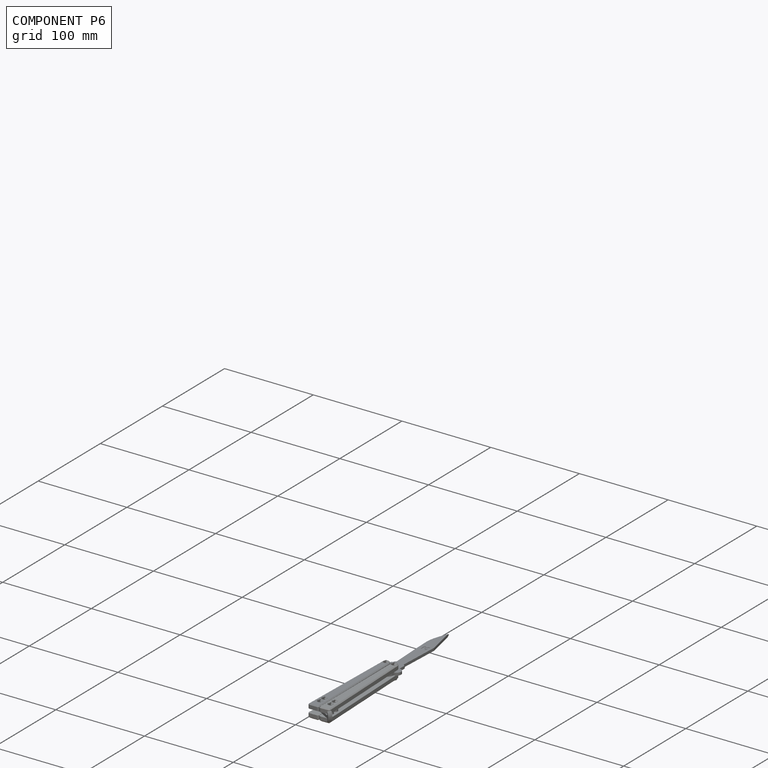
[diagram: component P6 — assembled]
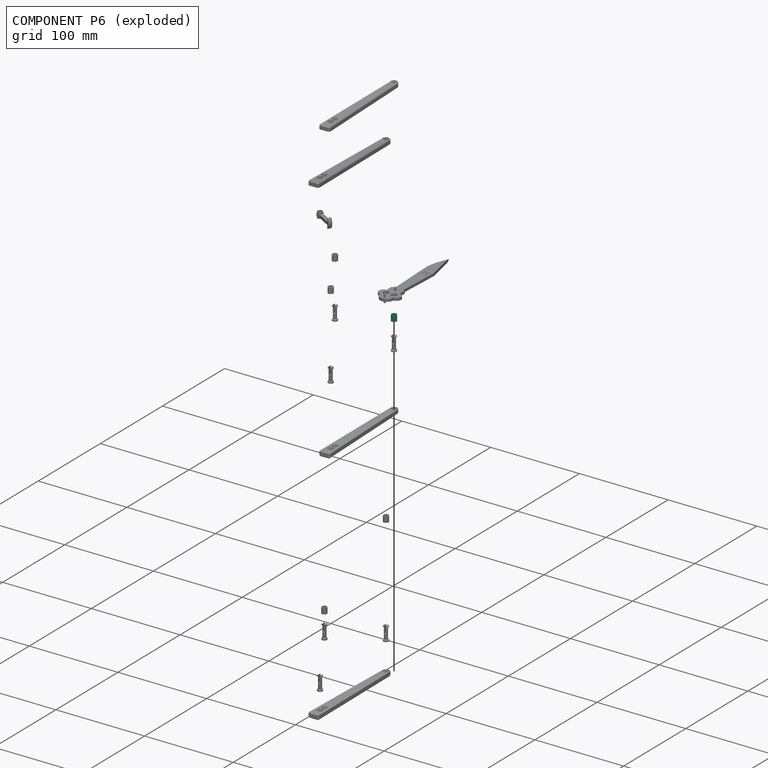
[diagram: component P6 — exploded]
COMPONENT P6 — same part as P0 (CADFS 00326436); its construction recipe is shown at P0.
Held by: REVOLUTE mate "Revolute 2" to P14; FASTENED mate "Fastened 2" to P15.
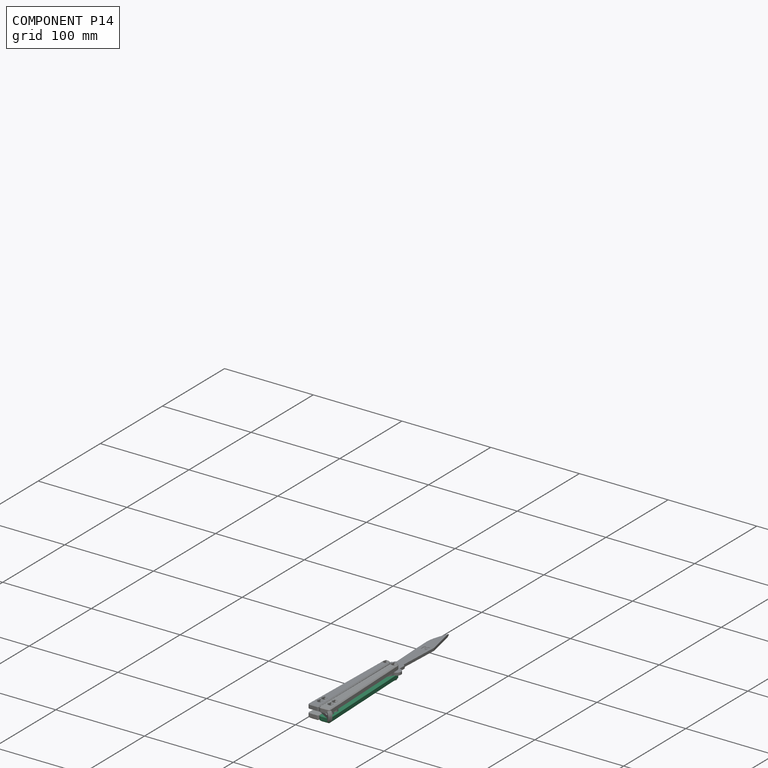
[diagram: component P14 — assembled]
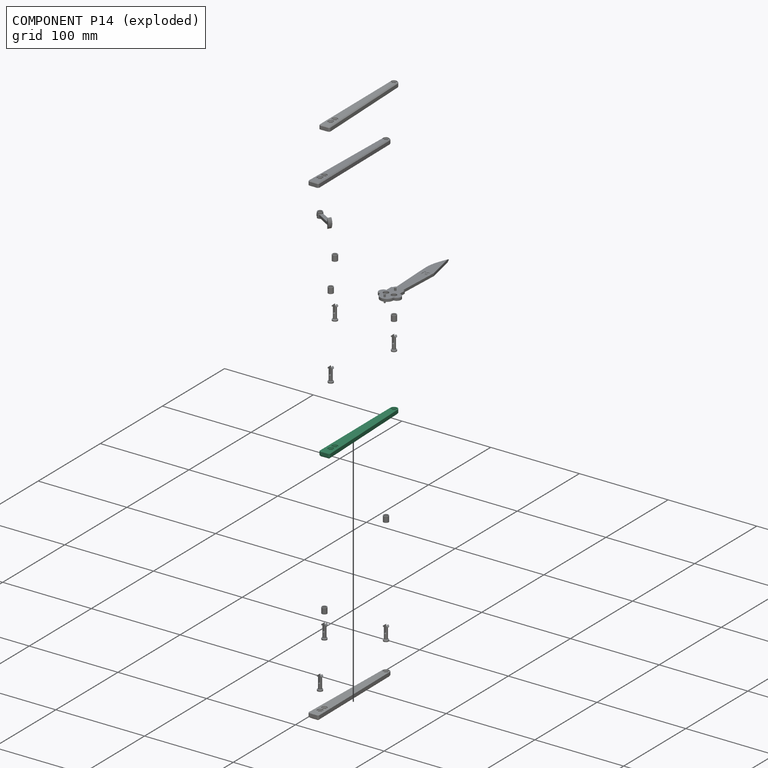
[diagram: component P14 — exploded]
COMPONENT P14 — same part as P2 (CADFS 00326435); its construction recipe is shown at P2.
Held by: FASTENED mate "Fastened 5" to P4; REVOLUTE mate "Revolute 2" to P6; FASTENED mate "Fastened 7" to P16; FASTENED mate "Fastened 12" to P11; FASTENED mate "Fastened 13" to P0; FASTENED mate "Fastened 9" to P8.
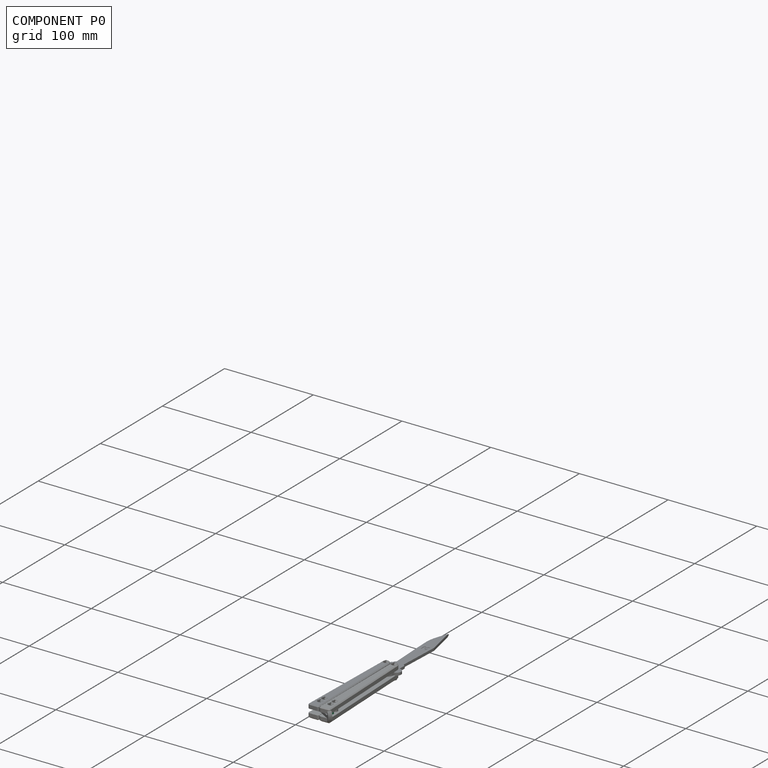
[diagram: component P0 — assembled]
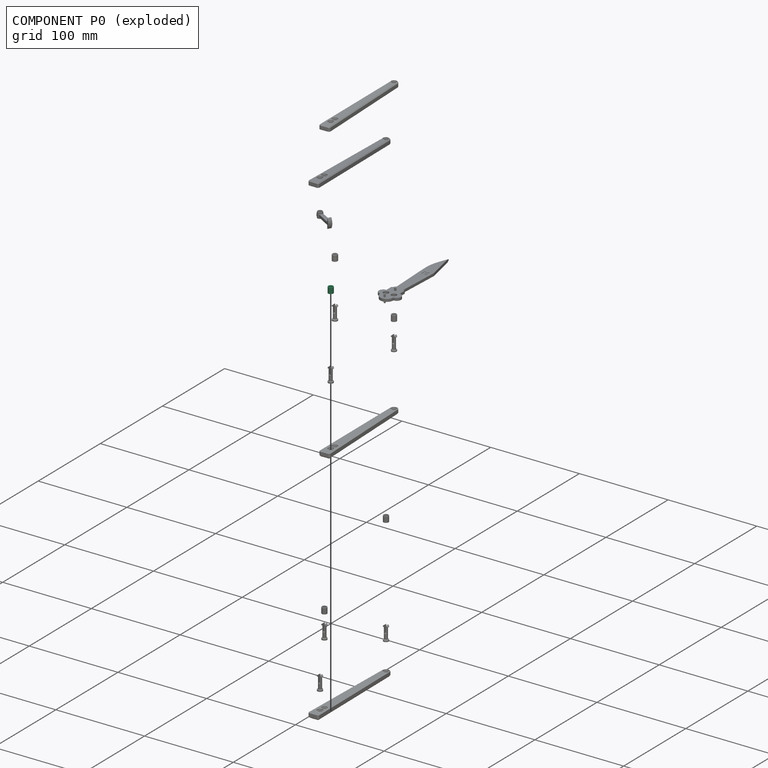
[diagram: component P0 — exploded]
COMPONENT P0 — recipe-attached (CADFS 00326436, mesh-verified: the recipe's output STEP matches this component's geometry to below the mesh-comparison resolution (tessellation chordal tolerance ~0.0157 mm)).
Held by: FASTENED mate "Fastened 13" to P14.
Construction recipe (FeatureScript — the CAD program that rebuilds this solid; sketch coordinates are in the units given by the * unit suffixes, e.g. mm):

FeatureScript 1511;
import(path : "onshape/std/geometry.fs", version : "1511.0");
import(path : "onshape/std/common.fs", version : "1511.0");
const mm = millimeter;
const VERTEX = EntityType.VERTEX;
const EDGE = EntityType.EDGE;
const FACE = EntityType.FACE;
const BODY = EntityType.BODY;
function v(x, y){return vector(x, y);}
function OD(order){return orderDisambiguation(order);}
function OSD(set){return originalSetDisambiguation(set);}
function TD(topology){return topologyDisambiguation(topology);}
function TDD(query){return trueDependencyDisambiguation(query);}
function sQuery(a, b, c) {return sketchEntityQuery(a, b, c);}

annotation { "Feature Type Name" : "Feature", "Feature Type Description" : "" }
export const myFeature = defineFeature(function(context is Context, id is Id, definition is map)
    precondition{}
    {
        {
            var Q0;
            Q0=qCreatedBy(makeId("Top.planeOp"),FACE);
            var sketch = newSketch(context, id + "F0", { "sketchPlane" : qUnion([Q0])});
            skCircle(sketch, "E0", {"center": v(-32.1, 26.84) * mm, "radius": 2.9 * mm});
            skCircle(sketch, "E1", {"center": v(-32.1, 26.84) * mm, "radius": 2.1 * mm});
            skSolve(sketch);
        }
        {
            var Q0;
            Q0=makeQuery(id+"F0.imprint","IMPRINT",FACE,{"disambiguationData":[TD([[makeQuery(id+"F0.imprint","IMPRINT",EDGE,{"derivedFrom":sQuery(id+"F0.wireOp",EDGE,"E0")}),1.0]])]});
            var Q1;
            Q1=sQuery(id+"F0.wireOp",EDGE,"E1");
            var Q2;
            Q2=sQuery(id+"F0.wireOp",EDGE,"E0");
            extrude(context, id + "F1", {"entities" : qUnion([Q0]), "surfaceEntities" : qUnion([Q1, Q2]), "depth" : 6.5 * mm});
        }
    });
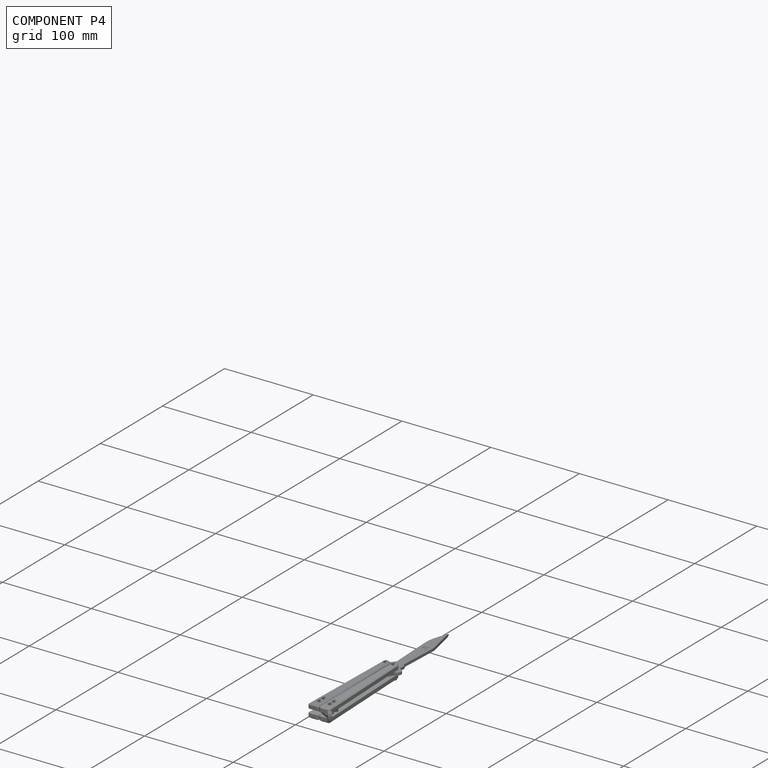
[diagram: component P4 — assembled]
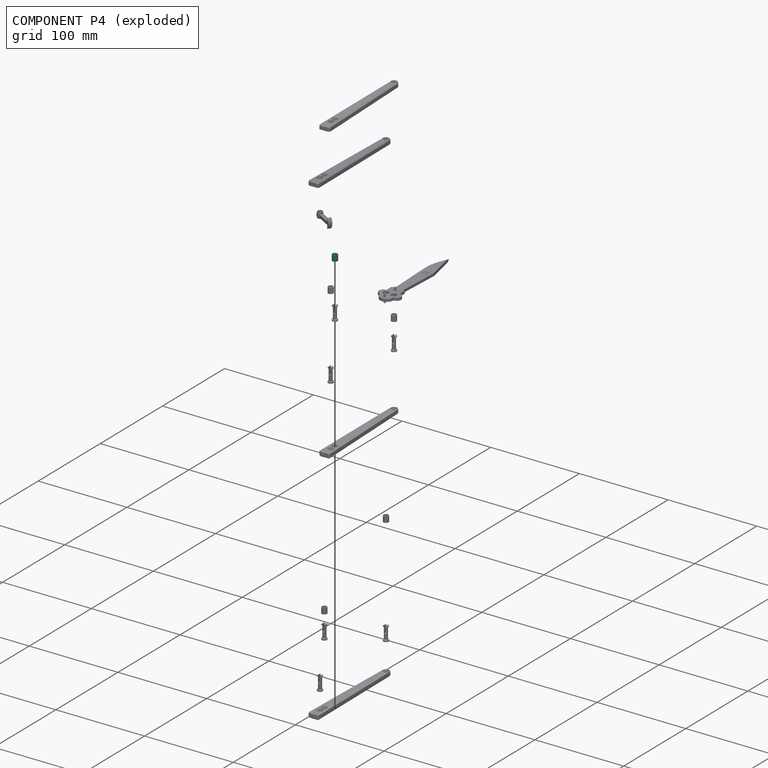
[diagram: component P4 — exploded]
COMPONENT P4 — same part as P0 (CADFS 00326436); its construction recipe is shown at P0.
Held by: FASTENED mate "Fastened 5" to P14; FASTENED mate "Fastened 4" to P10.
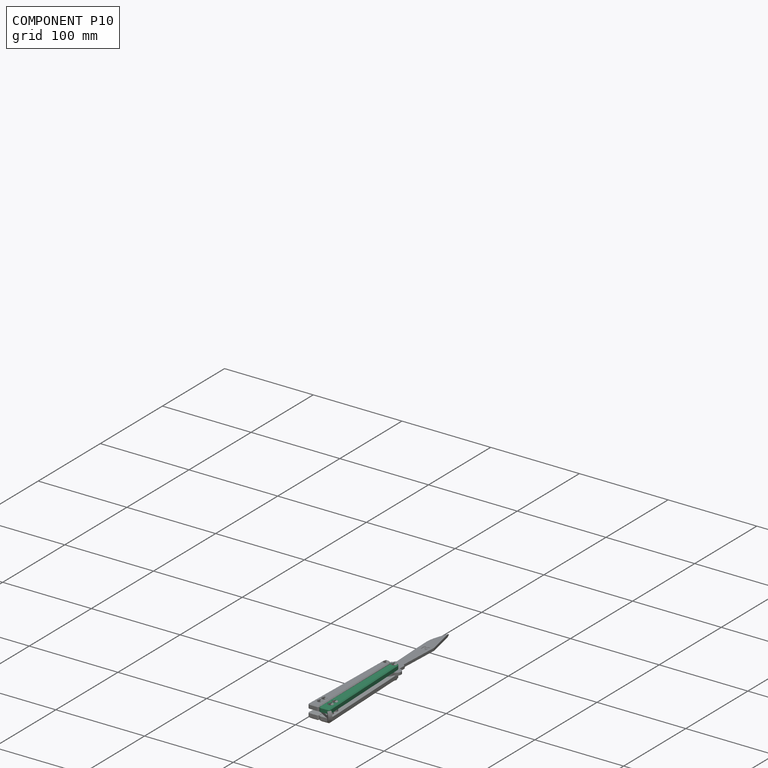
[diagram: component P10 — assembled]
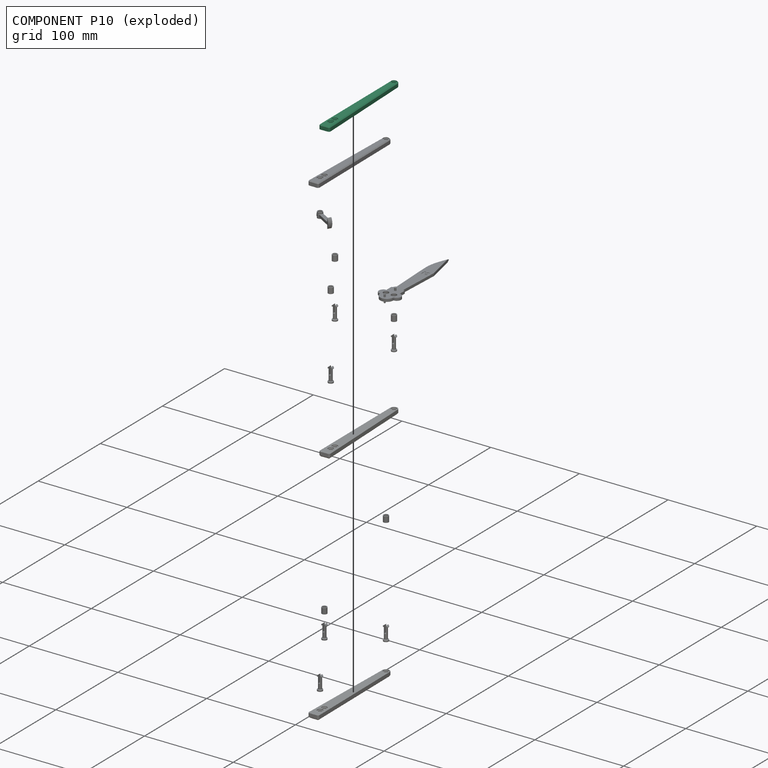
[diagram: component P10 — exploded]
COMPONENT P10 — same part as P2 (CADFS 00326435); its construction recipe is shown at P2.
Held by: FASTENED mate "Fastened 4" to P4.
